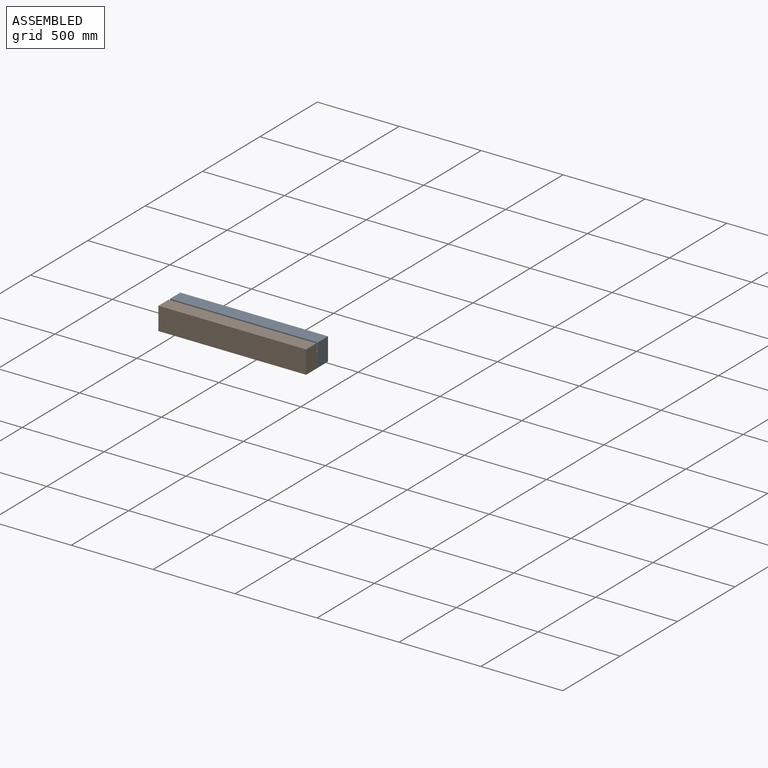
[diagram: assembled view]
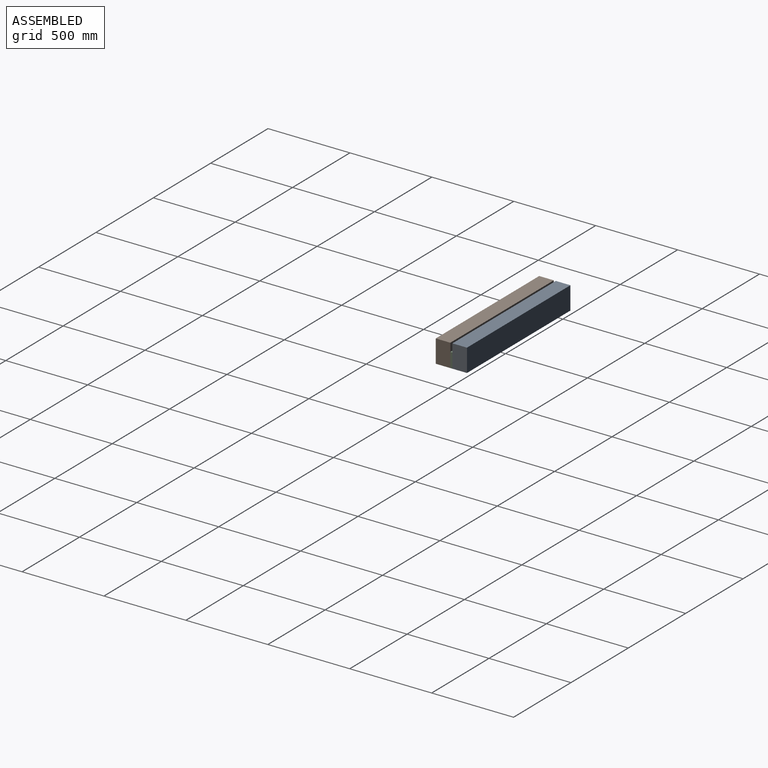
[diagram: assembled view, second angle]
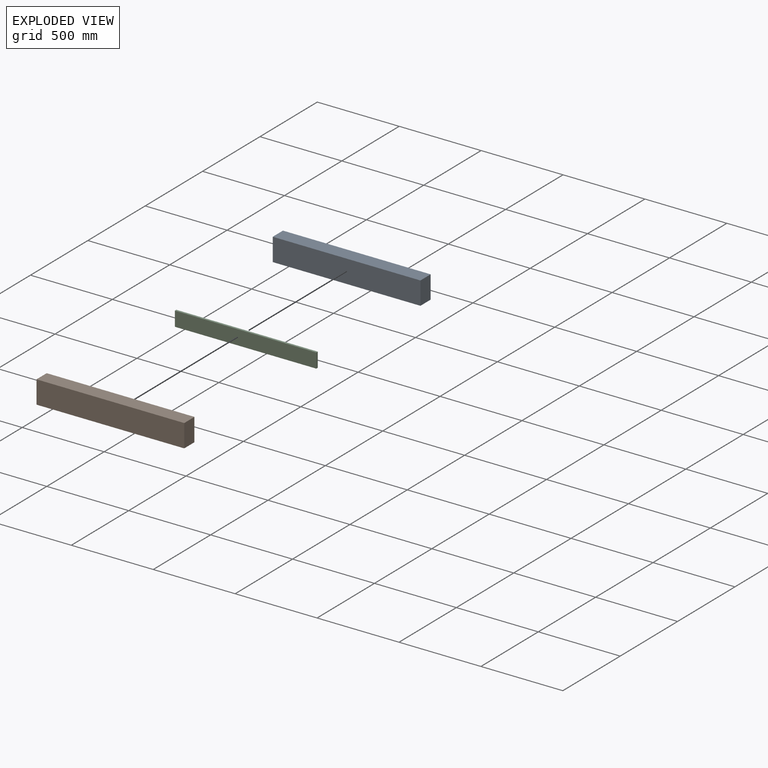
[diagram: exploded view]
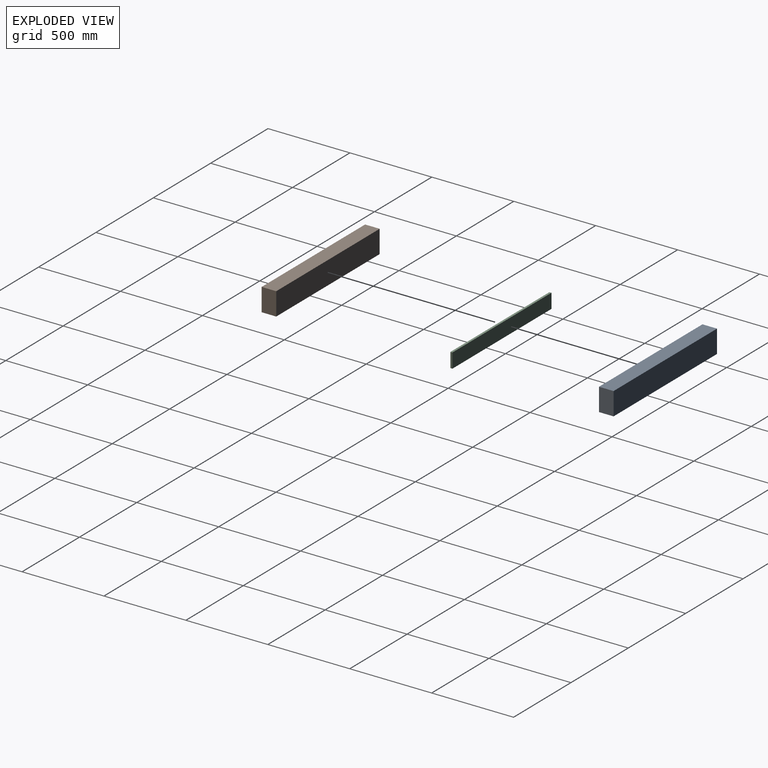
[diagram: exploded view, second angle]
ASSEMBLY  parts=3 mates=4
PART A: 6 faces, bbox 901.7x88.9x139.7 mm
  f0: plane 139.7x88.9mm, normal (-1,0,0), area 12419.3mm2, adj f1,f3,f4,f5
  f1: plane 901.7x88.9mm, normal (0,0,-1), area 80161.1mm2, adj f0,f2,f3,f4
  f2: plane 139.7x88.9mm, normal (1,0,0), area 12419.3mm2, adj f1,f3,f4,f5
  f3: plane 901.7x139.7mm, normal (0,-1,0), area 125967.5mm2, adj f0,f1,f2,f5
  f4: plane 901.7x139.7mm, normal (0,1,0), area 125967.5mm2, adj f0,f1,f2,f5
  f5: plane 901.7x88.9mm, normal (0,0,1), area 80161.1mm2, adj f0,f2,f3,f4
PART B: same geometry as A
PART C: 6 faces, bbox 863.6x12.7x88.9 mm
  f0: plane 88.9x12.7mm, normal (-1,0,0), area 1129mm2, adj f1,f3,f4,f5
  f1: plane 863.6x12.7mm, normal (0,0,-1), area 10967.7mm2, adj f0,f2,f4,f5
  f2: plane 88.9x12.7mm, normal (1,0,0), area 1129mm2, adj f1,f3,f4,f5
  f3: plane 863.6x12.7mm, normal (0,0,1), area 10967.7mm2, adj f0,f2,f4,f5
  f4: plane 863.6x88.9mm, normal (0,-1,0), area 76774mm2, adj f0,f1,f2,f3
  f5: plane 863.6x88.9mm, normal (0,1,0), area 76774mm2, adj f0,f1,f2,f3
PLACE A t=(-579.09,-9.19,-182.39)mm
PLACE B t=(-579.09,-110.79,-182.39)mm
PLACE C t=(-89.49,-98.09,-147.59)mm
MATE planar B.f2 <-> A.f2  axis (1,0,0) through (322.61,-155.24,-112.54)mm
MATE planar C.f2 <-> A.f2  axis (1,0,0) through (322.61,-104.44,-137.94)mm
MATE planar C.f4 <-> B.f4  axis (0,-1,0) through (-109.19,-110.79,-137.94)mm
MATE planar C.f5 <-> A.f3  axis (0,1,0) through (-109.19,-98.09,-137.94)mm
